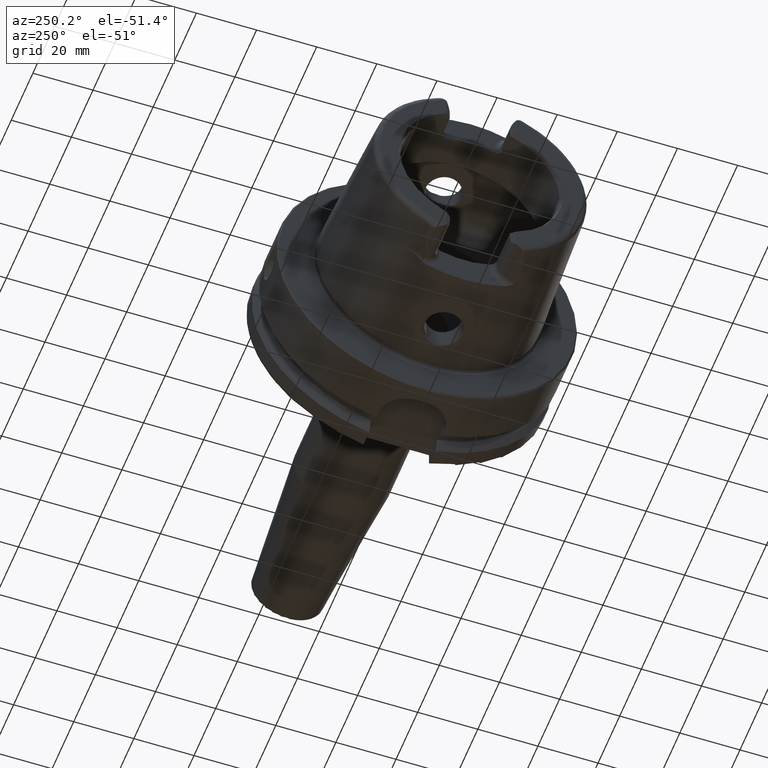
[diagram: clean part render]
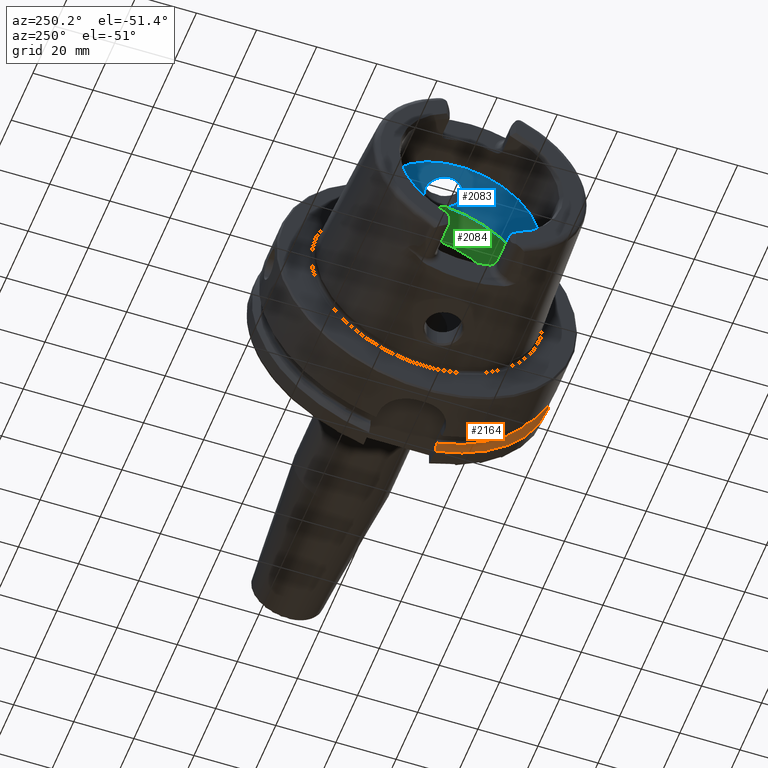
[diagram: same view with three faces highlighted in distinct colors, each labeled with its STEP entity id]
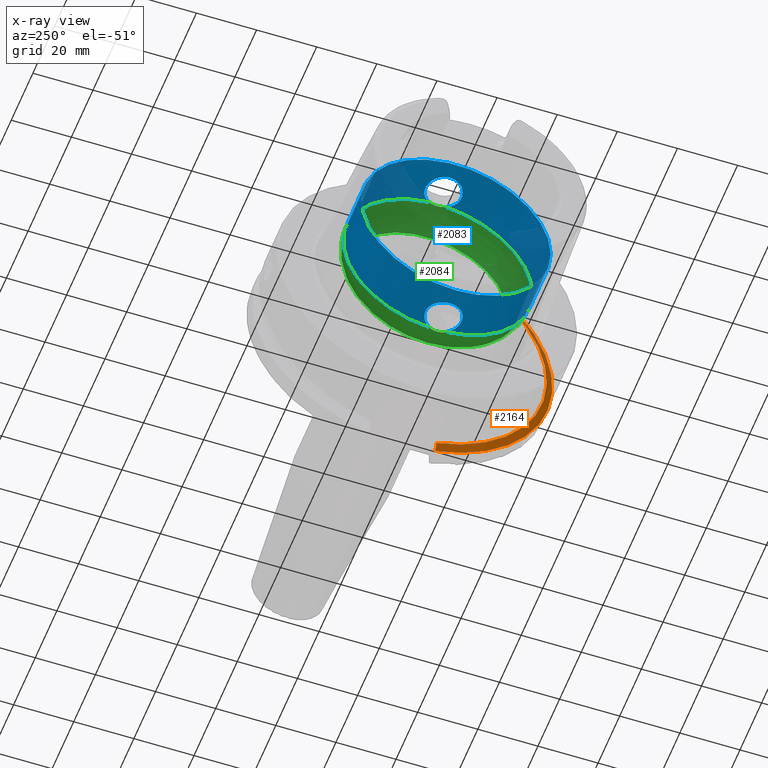
[diagram: x-ray of the same camera — body ghosted, the three highlighted faces saturated]
A machine part, auxiliary view with three faces highlighted in distinct colors.
The next image is the same camera in x-ray (body ghosted, the three faces saturated) — at least one of them is partly hidden behind the body in this view.
Their STEP definitions:

[orange] entity #2164 — the highlighted conical surface has half-angle 60 deg.
#20=(
BOUNDED_CURVE()
B_SPLINE_CURVE(2,(#4128,#4129,#4130),.UNSPECIFIED.,.F.,.F.)
B_SPLINE_CURVE_WITH_KNOTS((3,3),(0.,0.343884390880419),.UNSPECIFIED.)
CURVE()
GEOMETRIC_REPRESENTATION_ITEM()
RATIONAL_B_SPLINE_CURVE((1.,1.00052016257005,1.))
REPRESENTATION_ITEM('')
);
#25=(
BOUNDED_CURVE()
B_SPLINE_CURVE(2,(#4343,#4344,#4345),.UNSPECIFIED.,.F.,.F.)
B_SPLINE_CURVE_WITH_KNOTS((3,3),(0.,0.28292349080556),.UNSPECIFIED.)
CURVE()
GEOMETRIC_REPRESENTATION_ITEM()
RATIONAL_B_SPLINE_CURVE((1.,1.0003193410929,1.))
REPRESENTATION_ITEM('')
);
#334=FACE_OUTER_BOUND('',#472,.T.);
#472=EDGE_LOOP('',(#2008,#2009,#2010,#2011));
#776=CIRCLE('',#2350,50.);
#828=CIRCLE('',#2455,47.5975952641917);
#961=VERTEX_POINT('',#4125);
#962=VERTEX_POINT('',#4127);
#996=VERTEX_POINT('',#4340);
#997=VERTEX_POINT('',#4342);
#1215=EDGE_CURVE('',#962,#961,#20,.T.);
#1265=EDGE_CURVE('',#997,#996,#25,.T.);
#1281=EDGE_CURVE('',#962,#996,#776,.T.);
#1366=EDGE_CURVE('',#961,#997,#828,.T.);
#2008=ORIENTED_EDGE('',*,*,#1215,.T.);
#2009=ORIENTED_EDGE('',*,*,#1366,.T.);
#2010=ORIENTED_EDGE('',*,*,#1265,.T.);
#2011=ORIENTED_EDGE('',*,*,#1281,.F.);
#2042=CONICAL_SURFACE('',#2456,48.7987976320958,1.0471975511966);
#2164=ADVANCED_FACE('',(#334),#2042,.T.);
#2350=AXIS2_PLACEMENT_3D('',#4405,#2866,#2867);
#2455=AXIS2_PLACEMENT_3D('',#4649,#3100,#3101);
#2456=AXIS2_PLACEMENT_3D('',#4650,#3102,#3103);
#2866=DIRECTION('center_axis',(1.,0.,0.));
#2867=DIRECTION('ref_axis',(0.,0.,-1.));
#3100=DIRECTION('center_axis',(1.,0.,0.));
#3101=DIRECTION('ref_axis',(0.,0.,-1.));
#3102=DIRECTION('center_axis',(1.,0.,0.));
#3103=DIRECTION('ref_axis',(0.,-0.951449961441176,-0.307803461438603));
#4125=CARTESIAN_POINT('',(21.875,-35.6830642593065,31.5));
#4127=CARTESIAN_POINT('',(23.2620290209214,-38.8297566307078,31.5));
#4128=CARTESIAN_POINT('Ctrl Pts',(23.2620290209214,-38.8297566307078,31.5));
#4129=CARTESIAN_POINT('Ctrl Pts',(22.5392272442767,-37.2176818849707,31.5));
#4130=CARTESIAN_POINT('Ctrl Pts',(21.875,-35.6830642593065,31.5));
#4340=CARTESIAN_POINT('',(23.2620290209214,-11.,-48.7749935930288));
#4342=CARTESIAN_POINT('',(21.875,-11.,-46.3090819919138));
#4343=CARTESIAN_POINT('Ctrl Pts',(21.875,-11.,-46.3090819919138));
#4344=CARTESIAN_POINT('Ctrl Pts',(22.5505288964237,-11.,-47.5116880808802));
#4345=CARTESIAN_POINT('Ctrl Pts',(23.2620290209214,-11.,-48.7749935930288));
#4405=CARTESIAN_POINT('Origin',(23.2620290209214,0.,0.));
#4649=CARTESIAN_POINT('Origin',(21.875,0.,0.));
#4650=CARTESIAN_POINT('Origin',(22.5685145104607,0.,0.));

[blue] entity #2083 — the highlighted cylindrical surface (bore or boss wall) has radius 31.5 mm, axis along (-1, 0, 0).
#49=B_SPLINE_CURVE_WITH_KNOTS('',3,(#3723,#3724,#3725,#3726,#3727,#3728,
#3729,#3730,#3731,#3732,#3733,#3734,#3735,#3736,#3737,#3738,#3739,#3740,
#3741,#3742,#3743,#3744,#3745,#3746,#3747,#3748,#3749,#3750,#3751,#3752,
#3753),.UNSPECIFIED.,.F.,.F.,(4,2,2,2,2,2,2,2,2,2,2,3,2,2,4),(-2.42966289251045,
-2.26609494287567,-2.03948128472637,-1.81286762657707,-1.58625396842777,
-1.35964031027847,-1.1330370617835,-0.906433813288535,-0.679830564793567,
-0.453227316298599,-0.226613658149299,0.,0.2266136581493,0.453227316298599,
0.616795265988555),.UNSPECIFIED.);
#54=B_SPLINE_CURVE_WITH_KNOTS('',3,(#3915,#3916,#3917,#3918,#3919,#3920,
#3921,#3922,#3923,#3924,#3925,#3926,#3927,#3928,#3929,#3930,#3931,#3932,
#3933,#3934,#3935,#3936,#3937,#3938,#3939,#3940,#3941,#3942,#3943,#3944,
#3945),.UNSPECIFIED.,.F.,.F.,(4,2,2,3,2,2,2,2,2,2,2,2,2,2,4),(-0.616795265933374,
-0.453227316298598,-0.226613658149299,0.,0.2266136581493,0.453227316298599,
0.679830564793567,0.906433813288535,1.1330370617835,1.35964031027847,1.58625396842777,
1.81286762657707,2.03948128472637,2.26609494287567,2.42966289256562),
 .UNSPECIFIED.);
#189=CYLINDRICAL_SURFACE('',#2290,31.5);
#253=FACE_OUTER_BOUND('',#386,.T.);
#386=EDGE_LOOP('',(#1578,#1579,#1580,#1581,#1582,#1583,#1584,#1585,#1586));
#519=LINE('',#3961,#627);
#627=VECTOR('',#2711,31.5);
#744=CIRCLE('',#2291,31.5);
#745=CIRCLE('',#2292,31.5);
#746=CIRCLE('',#2293,31.5);
#747=CIRCLE('',#2294,31.5);
#748=CIRCLE('',#2295,31.5);
#926=VERTEX_POINT('',#3711);
#927=VERTEX_POINT('',#3722);
#930=VERTEX_POINT('',#3902);
#932=VERTEX_POINT('',#3914);
#933=VERTEX_POINT('',#3958);
#934=VERTEX_POINT('',#3960);
#935=VERTEX_POINT('',#3962);
#1169=EDGE_CURVE('',#927,#926,#49,.T.);
#1175=EDGE_CURVE('',#932,#930,#54,.T.);
#1178=EDGE_CURVE('',#933,#930,#744,.T.);
#1179=EDGE_CURVE('',#933,#934,#519,.T.);
#1180=EDGE_CURVE('',#934,#935,#745,.T.);
#1181=EDGE_CURVE('',#935,#934,#746,.T.);
#1182=EDGE_CURVE('',#927,#933,#747,.T.);
#1183=EDGE_CURVE('',#932,#926,#748,.T.);
#1578=ORIENTED_EDGE('',*,*,#1175,.T.);
#1579=ORIENTED_EDGE('',*,*,#1178,.F.);
#1580=ORIENTED_EDGE('',*,*,#1179,.T.);
#1581=ORIENTED_EDGE('',*,*,#1180,.T.);
#1582=ORIENTED_EDGE('',*,*,#1181,.T.);
#1583=ORIENTED_EDGE('',*,*,#1179,.F.);
#1584=ORIENTED_EDGE('',*,*,#1182,.F.);
#1585=ORIENTED_EDGE('',*,*,#1169,.T.);
#1586=ORIENTED_EDGE('',*,*,#1183,.F.);
#2083=ADVANCED_FACE('',(#253),#189,.F.);
#2290=AXIS2_PLACEMENT_3D('',#3957,#2707,#2708);
#2291=AXIS2_PLACEMENT_3D('',#3959,#2709,#2710);
#2292=AXIS2_PLACEMENT_3D('',#3963,#2712,#2713);
#2293=AXIS2_PLACEMENT_3D('',#3964,#2714,#2715);
#2294=AXIS2_PLACEMENT_3D('',#3965,#2716,#2717);
#2295=AXIS2_PLACEMENT_3D('',#3966,#2718,#2719);
#2707=DIRECTION('center_axis',(-1.,0.,0.));
#2708=DIRECTION('ref_axis',(0.,1.,0.));
#2709=DIRECTION('center_axis',(-1.,0.,0.));
#2710=DIRECTION('ref_axis',(0.,0.,1.));
#2711=DIRECTION('',(-1.,0.,0.));
#2712=DIRECTION('center_axis',(-1.,0.,0.));
#2713=DIRECTION('ref_axis',(0.,0.,1.));
#2714=DIRECTION('center_axis',(-1.,0.,0.));
#2715=DIRECTION('ref_axis',(0.,0.,1.));
#2716=DIRECTION('center_axis',(-1.,0.,0.));
#2717=DIRECTION('ref_axis',(0.,0.,1.));
#2718=DIRECTION('center_axis',(-1.,0.,0.));
#2719=DIRECTION('ref_axis',(0.,0.,1.));
#3711=CARTESIAN_POINT('',(-9.74679434480896,2.89893607109041,-31.3663222207471));
#3722=CARTESIAN_POINT('',(-9.74679434480896,-2.89893607109041,-31.3663222207471));
#3723=CARTESIAN_POINT('Ctrl Pts',(-9.74679434480898,-2.8989360710904,-31.3663222207471));
#3724=CARTESIAN_POINT('Ctrl Pts',(-10.0245557799842,-3.40227174537722,-31.3198029657389));
#3725=CARTESIAN_POINT('Ctrl Pts',(-10.3735944692601,-3.85887584349869,-31.2651415110221));
#3726=CARTESIAN_POINT('Ctrl Pts',(-11.289042660848,-4.77432403508655,-31.140708727458));
#3727=CARTESIAN_POINT('Ctrl Pts',(-11.9624834305428,-5.23577180141274,-31.0633803744766));
#3728=CARTESIAN_POINT('Ctrl Pts',(-13.4401908644727,-5.84865855662958,-30.9538382316308));
#3729=CARTESIAN_POINT('Ctrl Pts',(-14.2446211395023,-6.00000000000001,-30.9232921921325));
#3730=CARTESIAN_POINT('Ctrl Pts',(-15.7553788604977,-6.00000000000001,-30.9232921921325));
#3731=CARTESIAN_POINT('Ctrl Pts',(-16.5598091355273,-5.84865855662958,-30.9538382316308));
#3732=CARTESIAN_POINT('Ctrl Pts',(-18.0375165694572,-5.23577180141275,-31.0633803744766));
#3733=CARTESIAN_POINT('Ctrl Pts',(-18.710957339152,-4.77432403508655,-31.140708727458));
#3734=CARTESIAN_POINT('Ctrl Pts',(-19.7742996118461,-3.71098176239249,-31.2852440928545));
#3735=CARTESIAN_POINT('Ctrl Pts',(-20.2357665181958,-3.03753058698362,-31.3619556484746));
#3736=CARTESIAN_POINT('Ctrl Pts',(-20.8486671603361,-1.55978711209124,-31.4700797313679));
#3737=CARTESIAN_POINT('Ctrl Pts',(-21.,-0.755344161649895,-31.5));
#3738=CARTESIAN_POINT('Ctrl Pts',(-21.,0.755344161649892,-31.5));
#3739=CARTESIAN_POINT('Ctrl Pts',(-20.8486671603361,1.55978711209124,-31.4700797313679));
#3740=CARTESIAN_POINT('Ctrl Pts',(-20.2357665181958,3.03753058698362,-31.3619556484746));
#3741=CARTESIAN_POINT('Ctrl Pts',(-19.7742996118461,3.71098176239249,-31.2852440928545));
#3742=CARTESIAN_POINT('Ctrl Pts',(-18.710957339152,4.77432403508655,-31.140708727458));
#3743=CARTESIAN_POINT('Ctrl Pts',(-18.0375165694572,5.23577180141274,-31.0633803744766));
#3744=CARTESIAN_POINT('Ctrl Pts',(-16.5598091355273,5.84865855662958,-30.9538382316308));
#3745=CARTESIAN_POINT('Ctrl Pts',(-15.7553788604977,6.00000000000001,-30.9232921921325));
#3746=CARTESIAN_POINT('Ctrl Pts',(-15.,6.00000000000001,-30.9232921921325));
#3747=CARTESIAN_POINT('Ctrl Pts',(-14.2446211395023,6.00000000000001,-30.9232921921325));
#3748=CARTESIAN_POINT('Ctrl Pts',(-13.4401908644727,5.84865855662958,-30.9538382316308));
#3749=CARTESIAN_POINT('Ctrl Pts',(-11.9624834305428,5.23577180141274,-31.0633803744766));
#3750=CARTESIAN_POINT('Ctrl Pts',(-11.289042660848,4.77432403508655,-31.140708727458));
#3751=CARTESIAN_POINT('Ctrl Pts',(-10.3735944691306,3.85887584336922,-31.2651415110397));
#3752=CARTESIAN_POINT('Ctrl Pts',(-10.0245557801354,3.40227174565105,-31.3198029657135));
#3753=CARTESIAN_POINT('Ctrl Pts',(-9.74679434480898,2.8989360710904,-31.3663222207471));
#3902=CARTESIAN_POINT('',(-9.74679434480896,-2.89893607109042,31.3663222207471));
#3914=CARTESIAN_POINT('',(-9.74679434480896,2.89893607109042,31.3663222207471));
#3915=CARTESIAN_POINT('Ctrl Pts',(-9.74679434480897,2.89893607109041,31.3663222207471));
#3916=CARTESIAN_POINT('Ctrl Pts',(-10.0245557799842,3.40227174537723,31.3198029657389));
#3917=CARTESIAN_POINT('Ctrl Pts',(-10.3735944692601,3.85887584349869,31.2651415110221));
#3918=CARTESIAN_POINT('Ctrl Pts',(-11.289042660848,4.77432403508655,31.140708727458));
#3919=CARTESIAN_POINT('Ctrl Pts',(-11.9624834305428,5.23577180141274,31.0633803744766));
#3920=CARTESIAN_POINT('Ctrl Pts',(-13.4401908644727,5.84865855662958,30.9538382316308));
#3921=CARTESIAN_POINT('Ctrl Pts',(-14.2446211395023,6.00000000000001,30.9232921921325));
#3922=CARTESIAN_POINT('Ctrl Pts',(-15.,6.00000000000001,30.9232921921325));
#3923=CARTESIAN_POINT('Ctrl Pts',(-15.7553788604977,6.00000000000001,30.9232921921325));
#3924=CARTESIAN_POINT('Ctrl Pts',(-16.5598091355273,5.84865855662958,30.9538382316308));
#3925=CARTESIAN_POINT('Ctrl Pts',(-18.0375165694572,5.23577180141274,31.0633803744766));
#3926=CARTESIAN_POINT('Ctrl Pts',(-18.710957339152,4.77432403508655,31.140708727458));
#3927=CARTESIAN_POINT('Ctrl Pts',(-19.7742996118461,3.71098176239249,31.2852440928545));
#3928=CARTESIAN_POINT('Ctrl Pts',(-20.2357665181958,3.03753058698362,31.3619556484746));
#3929=CARTESIAN_POINT('Ctrl Pts',(-20.8486671603361,1.55978711209124,31.4700797313679));
#3930=CARTESIAN_POINT('Ctrl Pts',(-21.,0.755344161649892,31.5));
#3931=CARTESIAN_POINT('Ctrl Pts',(-21.,-0.755344161649894,31.5));
#3932=CARTESIAN_POINT('Ctrl Pts',(-20.8486671603361,-1.55978711209124,31.4700797313679));
#3933=CARTESIAN_POINT('Ctrl Pts',(-20.2357665181958,-3.03753058698362,31.3619556484746));
#3934=CARTESIAN_POINT('Ctrl Pts',(-19.7742996118461,-3.71098176239249,31.2852440928545));
#3935=CARTESIAN_POINT('Ctrl Pts',(-18.710957339152,-4.77432403508655,31.140708727458));
#3936=CARTESIAN_POINT('Ctrl Pts',(-18.0375165694572,-5.23577180141274,31.0633803744766));
#3937=CARTESIAN_POINT('Ctrl Pts',(-16.5598091355273,-5.84865855662958,30.9538382316308));
#3938=CARTESIAN_POINT('Ctrl Pts',(-15.7553788604977,-6.00000000000001,30.9232921921325));
#3939=CARTESIAN_POINT('Ctrl Pts',(-14.2446211395023,-6.00000000000001,30.9232921921325));
#3940=CARTESIAN_POINT('Ctrl Pts',(-13.4401908644727,-5.84865855662958,30.9538382316308));
#3941=CARTESIAN_POINT('Ctrl Pts',(-11.9624834305428,-5.23577180141274,31.0633803744766));
#3942=CARTESIAN_POINT('Ctrl Pts',(-11.289042660848,-4.77432403508655,31.140708727458));
#3943=CARTESIAN_POINT('Ctrl Pts',(-10.3735944691306,-3.85887584336922,31.2651415110397));
#3944=CARTESIAN_POINT('Ctrl Pts',(-10.0245557801353,-3.40227174565106,31.3198029657135));
#3945=CARTESIAN_POINT('Ctrl Pts',(-9.74679434480897,-2.89893607109041,31.3663222207471));
#3957=CARTESIAN_POINT('Origin',(-18.1430342013226,0.,0.));
#3958=CARTESIAN_POINT('',(-9.74679434480896,-31.5,3.85763741731416E-15));
#3959=CARTESIAN_POINT('Origin',(-9.74679434480896,0.,0.));
#3960=CARTESIAN_POINT('',(-26.5392740578363,-31.5,3.85763741731416E-15));
#3961=CARTESIAN_POINT('',(-18.1430342013226,-31.5,3.85763741731416E-15));
#3962=CARTESIAN_POINT('',(-26.5392740578363,-3.85763741731416E-15,-31.5));
#3963=CARTESIAN_POINT('Origin',(-26.5392740578363,0.,0.));
#3964=CARTESIAN_POINT('Origin',(-26.5392740578363,0.,0.));
#3965=CARTESIAN_POINT('Origin',(-9.74679434480896,0.,0.));
#3966=CARTESIAN_POINT('Origin',(-9.74679434480896,0.,0.));

[green] entity #2084 — the highlighted toroidal blend (fillet) surface has major radius 19.5 mm and minor (blend) radius 12 mm.
#48=B_SPLINE_CURVE_WITH_KNOTS('',3,(#3712,#3713,#3714,#3715,#3716,#3717,
#3718,#3719,#3720,#3721),.UNSPECIFIED.,.F.,.F.,(4,2,2,2,4),(-0.606113644645353,
-0.532141714710631,-0.407956541554012,-0.344441109025195,-0.303157612487306),
 .UNSPECIFIED.);
#50=B_SPLINE_CURVE_WITH_KNOTS('',3,(#3754,#3755,#3756,#3757,#3758,#3759,
#3760,#3761,#3762,#3763),.UNSPECIFIED.,.F.,.F.,(4,2,2,2,4),(-0.303157612487306,
-0.297161587155601,-0.247817233363509,-0.174446982686599,0.),
 .UNSPECIFIED.);
#53=B_SPLINE_CURVE_WITH_KNOTS('',3,(#3904,#3905,#3906,#3907,#3908,#3909,
#3910,#3911,#3912,#3913),.UNSPECIFIED.,.F.,.F.,(4,2,2,2,4),(-0.606113644645388,
-0.532141714710621,-0.407956541553997,-0.344441109025146,-0.303157612487227),
 .UNSPECIFIED.);
#55=B_SPLINE_CURVE_WITH_KNOTS('',3,(#3946,#3947,#3948,#3949,#3950,#3951,
#3952,#3953,#3954,#3955),.UNSPECIFIED.,.F.,.F.,(4,2,2,2,4),(-0.303157612487227,
-0.297161587155532,-0.247817233363497,-0.174446982686607,0.),
 .UNSPECIFIED.);
#143=TOROIDAL_SURFACE('',#2296,19.5,12.);
#254=FACE_OUTER_BOUND('',#387,.T.);
#387=EDGE_LOOP('',(#1587,#1588,#1589,#1590,#1591,#1592,#1593,#1594,#1595,
#1596,#1597));
#744=CIRCLE('',#2291,31.5);
#747=CIRCLE('',#2294,31.5);
#748=CIRCLE('',#2295,31.5);
#749=CIRCLE('',#2297,26.5);
#750=CIRCLE('',#2298,26.5);
#751=CIRCLE('',#2299,12.);
#925=VERTEX_POINT('',#3709);
#926=VERTEX_POINT('',#3711);
#927=VERTEX_POINT('',#3722);
#930=VERTEX_POINT('',#3902);
#931=VERTEX_POINT('',#3903);
#932=VERTEX_POINT('',#3914);
#933=VERTEX_POINT('',#3958);
#936=VERTEX_POINT('',#3968);
#937=VERTEX_POINT('',#3969);
#1168=EDGE_CURVE('',#926,#925,#48,.T.);
#1170=EDGE_CURVE('',#925,#927,#50,.T.);
#1174=EDGE_CURVE('',#930,#931,#53,.T.);
#1176=EDGE_CURVE('',#931,#932,#55,.T.);
#1178=EDGE_CURVE('',#933,#930,#744,.T.);
#1182=EDGE_CURVE('',#927,#933,#747,.T.);
#1183=EDGE_CURVE('',#932,#926,#748,.T.);
#1184=EDGE_CURVE('',#936,#937,#749,.T.);
#1185=EDGE_CURVE('',#937,#936,#750,.T.);
#1186=EDGE_CURVE('',#937,#925,#751,.T.);
#1587=ORIENTED_EDGE('',*,*,#1184,.F.);
#1588=ORIENTED_EDGE('',*,*,#1185,.F.);
#1589=ORIENTED_EDGE('',*,*,#1186,.T.);
#1590=ORIENTED_EDGE('',*,*,#1170,.T.);
#1591=ORIENTED_EDGE('',*,*,#1182,.T.);
#1592=ORIENTED_EDGE('',*,*,#1178,.T.);
#1593=ORIENTED_EDGE('',*,*,#1174,.T.);
#1594=ORIENTED_EDGE('',*,*,#1176,.T.);
#1595=ORIENTED_EDGE('',*,*,#1183,.T.);
#1596=ORIENTED_EDGE('',*,*,#1168,.T.);
#1597=ORIENTED_EDGE('',*,*,#1186,.F.);
#2084=ADVANCED_FACE('',(#254),#143,.F.);
#2291=AXIS2_PLACEMENT_3D('',#3959,#2709,#2710);
#2294=AXIS2_PLACEMENT_3D('',#3965,#2716,#2717);
#2295=AXIS2_PLACEMENT_3D('',#3966,#2718,#2719);
#2296=AXIS2_PLACEMENT_3D('',#3967,#2720,#2721);
#2297=AXIS2_PLACEMENT_3D('',#3970,#2722,#2723);
#2298=AXIS2_PLACEMENT_3D('',#3971,#2724,#2725);
#2299=AXIS2_PLACEMENT_3D('',#3972,#2726,#2727);
#2709=DIRECTION('center_axis',(-1.,0.,0.));
#2710=DIRECTION('ref_axis',(0.,0.,1.));
#2716=DIRECTION('center_axis',(-1.,0.,0.));
#2717=DIRECTION('ref_axis',(0.,0.,1.));
#2718=DIRECTION('center_axis',(-1.,0.,0.));
#2719=DIRECTION('ref_axis',(0.,0.,1.));
#2720=DIRECTION('center_axis',(-1.,0.,0.));
#2721=DIRECTION('ref_axis',(0.,0.,1.));
#2722=DIRECTION('center_axis',(-1.,0.,0.));
#2723=DIRECTION('ref_axis',(0.,0.,1.));
#2724=DIRECTION('center_axis',(-1.,0.,0.));
#2725=DIRECTION('ref_axis',(0.,0.,1.));
#2726=DIRECTION('center_axis',(0.,1.,-1.22464679914735E-16));
#2727=DIRECTION('ref_axis',(0.,-1.22464679914735E-16,-1.));
#3709=CARTESIAN_POINT('',(-9.,8.53116613017712E-16,-31.4767398822284));
#3711=CARTESIAN_POINT('',(-9.74679434480896,2.89893607109041,-31.3663222207471));
#3712=CARTESIAN_POINT('Ctrl Pts',(-9.74679434480898,2.89893607109041,-31.3663222207471));
#3713=CARTESIAN_POINT('Ctrl Pts',(-9.62803941549252,2.68373847757038,-31.3862111979079));
#3714=CARTESIAN_POINT('Ctrl Pts',(-9.52250794022164,2.46123932380009,-31.4027818190648));
#3715=CARTESIAN_POINT('Ctrl Pts',(-9.27707880675082,1.84905941644996,-31.4398086116956));
#3716=CARTESIAN_POINT('Ctrl Pts',(-9.16318715371328,1.45014848778478,-31.4552463037839));
#3717=CARTESIAN_POINT('Ctrl Pts',(-9.05448554629564,0.83406948853474,-31.4697090180031));
#3718=CARTESIAN_POINT('Ctrl Pts',(-9.02875508102837,0.623753972628784,-31.4730355369691));
#3719=CARTESIAN_POINT('Ctrl Pts',(-9.00473516300901,0.275210595137741,-31.4761342948647));
#3720=CARTESIAN_POINT('Ctrl Pts',(-9.,0.13762179988616,-31.4767398822284));
#3721=CARTESIAN_POINT('Ctrl Pts',(-9.,9.71445146547012E-16,-31.4767398822284));
#3722=CARTESIAN_POINT('',(-9.74679434480896,-2.89893607109041,-31.3663222207471));
#3754=CARTESIAN_POINT('Ctrl Pts',(-9.,9.83483832277069E-16,-31.4767398822284));
#3755=CARTESIAN_POINT('Ctrl Pts',(-9.,-0.0199882245331354,-31.4767398822284));
#3756=CARTESIAN_POINT('Ctrl Pts',(-9.00009988237686,-0.0399771452902417,
-31.4767270717783));
#3757=CARTESIAN_POINT('Ctrl Pts',(-9.00194380057016,-0.224464346212316,
-31.4764905359115));
#3758=CARTESIAN_POINT('Ctrl Pts',(-9.01035297969853,-0.388827878343727,
-31.4754151841588));
#3759=CARTESIAN_POINT('Ctrl Pts',(-9.0480310904853,-0.796171644009328,-31.4705320701686));
#3760=CARTESIAN_POINT('Ctrl Pts',(-9.08543037238412,-1.03809779370842,-31.4656619259797));
#3761=CARTESIAN_POINT('Ctrl Pts',(-9.26119500081336,-1.84501079512327,-31.441850680052));
#3762=CARTESIAN_POINT('Ctrl Pts',(-9.4667592962906,-2.39148034786879,-31.4132222586341));
#3763=CARTESIAN_POINT('Ctrl Pts',(-9.74679434480898,-2.89893607109041,-31.3663222207471));
#3902=CARTESIAN_POINT('',(-9.74679434480896,-2.89893607109042,31.3663222207471));
#3903=CARTESIAN_POINT('',(-8.99999999999999,7.8372767397864E-16,31.4767398822284));
#3904=CARTESIAN_POINT('Ctrl Pts',(-9.74679434480898,-2.89893607109042,31.3663222207471));
#3905=CARTESIAN_POINT('Ctrl Pts',(-9.62803941549257,-2.6837384775705,31.3862111979079));
#3906=CARTESIAN_POINT('Ctrl Pts',(-9.52250794022172,-2.46123932380032,31.4027818190648));
#3907=CARTESIAN_POINT('Ctrl Pts',(-9.27707880675083,-1.84905941645004,31.4398086116956));
#3908=CARTESIAN_POINT('Ctrl Pts',(-9.16318715371328,-1.45014848778485,31.4552463037839));
#3909=CARTESIAN_POINT('Ctrl Pts',(-9.05448554629561,-0.834069488534672,
31.4697090180031));
#3910=CARTESIAN_POINT('Ctrl Pts',(-9.02875508102836,-0.623753972628598,
31.4730355369691));
#3911=CARTESIAN_POINT('Ctrl Pts',(-9.00473516300902,-0.275210595137865,
31.4761342948647));
#3912=CARTESIAN_POINT('Ctrl Pts',(-8.99999999999999,-0.137621799886392,
31.4767398822284));
#3913=CARTESIAN_POINT('Ctrl Pts',(-8.99999999999999,9.0205620750794E-16,
31.4767398822284));
#3914=CARTESIAN_POINT('',(-9.74679434480896,2.89893607109042,31.3663222207471));
#3946=CARTESIAN_POINT('Ctrl Pts',(-8.99999999999999,8.7920239009422E-16,
31.4767398822284));
#3947=CARTESIAN_POINT('Ctrl Pts',(-8.99999999999999,0.0199882245331231,
31.4767398822284));
#3948=CARTESIAN_POINT('Ctrl Pts',(-9.00009988237684,0.0399771452902225,
31.4767270717783));
#3949=CARTESIAN_POINT('Ctrl Pts',(-9.00194380057014,0.224464346212396,31.4764905359115));
#3950=CARTESIAN_POINT('Ctrl Pts',(-9.01035297969852,0.388827878343765,31.4754151841588));
#3951=CARTESIAN_POINT('Ctrl Pts',(-9.0480310904853,0.79617164400948,31.4705320701686));
#3952=CARTESIAN_POINT('Ctrl Pts',(-9.08543037238414,1.03809779370849,31.4656619259797));
#3953=CARTESIAN_POINT('Ctrl Pts',(-9.26119500081334,1.84501079512323,31.441850680052));
#3954=CARTESIAN_POINT('Ctrl Pts',(-9.46675929629059,2.39148034786878,31.4132222586341));
#3955=CARTESIAN_POINT('Ctrl Pts',(-9.74679434480898,2.89893607109043,31.3663222207471));
#3958=CARTESIAN_POINT('',(-9.74679434480896,-31.5,3.85763741731416E-15));
#3959=CARTESIAN_POINT('Origin',(-9.74679434480896,0.,0.));
#3965=CARTESIAN_POINT('Origin',(-9.74679434480896,0.,0.));
#3966=CARTESIAN_POINT('Origin',(-9.74679434480896,0.,0.));
#3967=CARTESIAN_POINT('Origin',(-9.74679434480896,0.,0.));
#3968=CARTESIAN_POINT('',(0.,-26.5,3.24531401774049E-15));
#3969=CARTESIAN_POINT('',(0.,-3.24531401774049E-15,-26.5));
#3970=CARTESIAN_POINT('Origin',(0.,0.,0.));
#3971=CARTESIAN_POINT('Origin',(0.,0.,0.));
#3972=CARTESIAN_POINT('Origin',(-9.74679434480896,-2.38806125833734E-15,
-19.5));